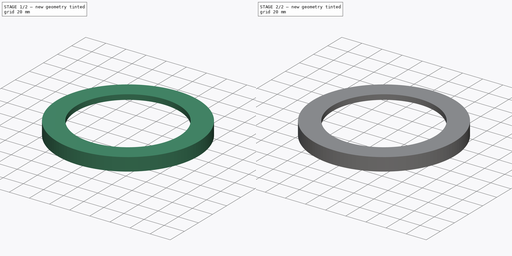
[diagram: build sequence overview — one tinted view per stage of 2, left to right]
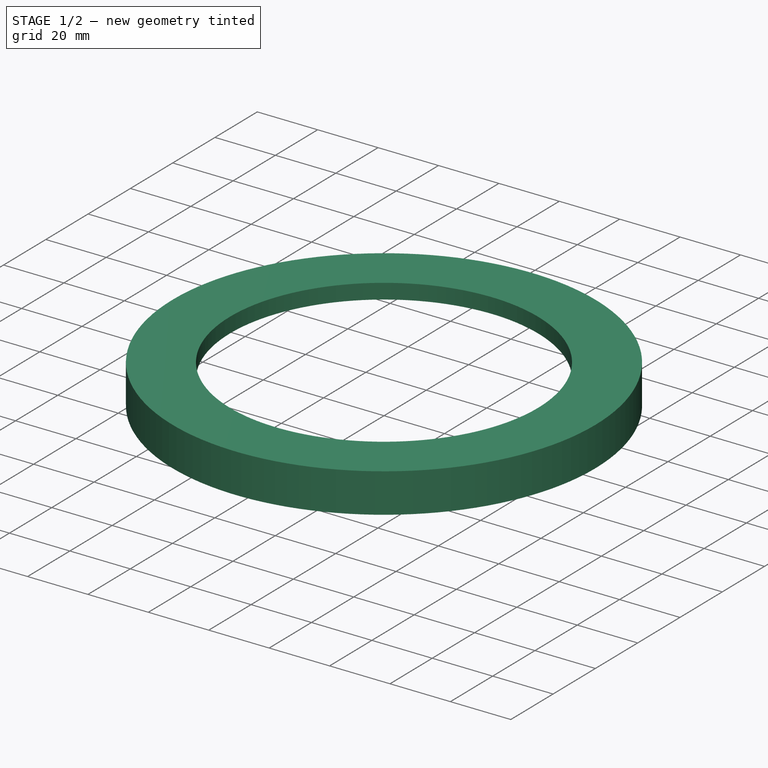
[diagram: stage 1 of 2 — iso view after this stage's code; geometry added in this stage tinted green]
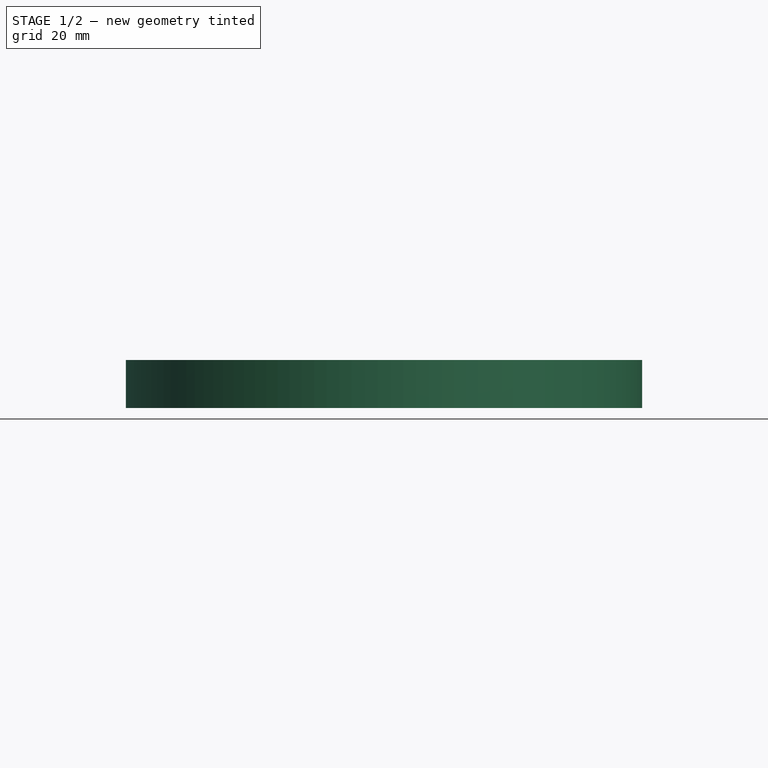
[diagram: stage 1 of 2 — front view after this stage's code; geometry added in this stage tinted green]
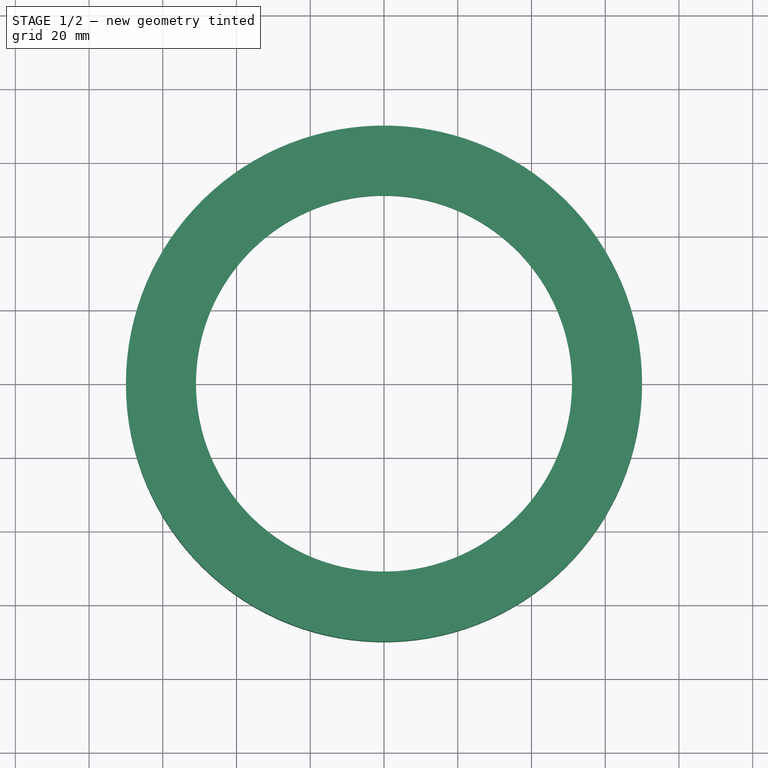
[diagram: stage 1 of 2 — top view after this stage's code; geometry added in this stage tinted green]
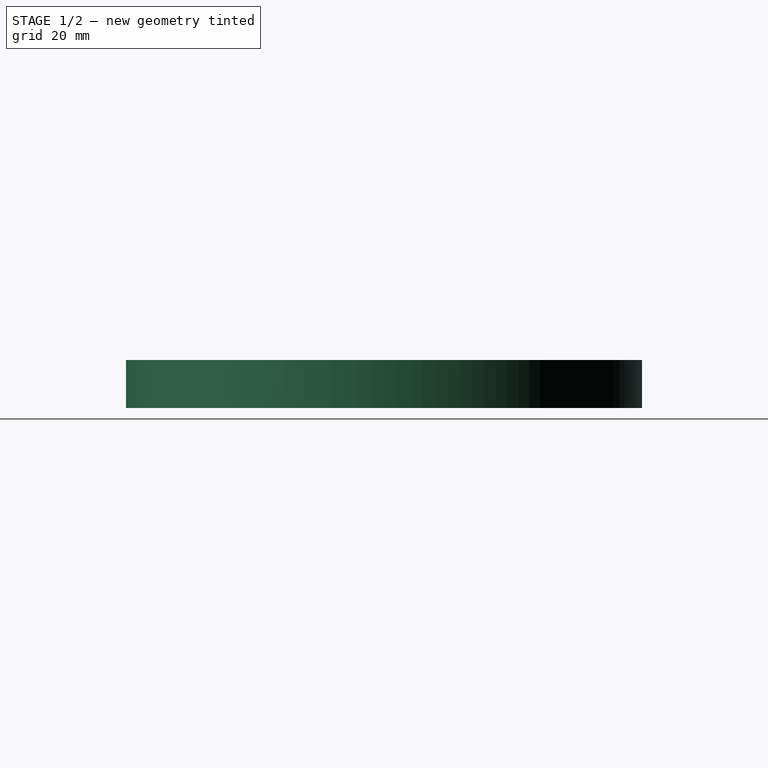
[diagram: stage 1 of 2 — right view after this stage's code; geometry added in this stage tinted green]
FCSTD DOCUMENT  (FreeCAD 2022.111R30764 (Git))
Label: DobsonPlatfromFeedholder
License: All rights reserved
LicenseURL: http://en.wikipedia.org/wiki/All_rights_reserved
objects: Sketcher::SketchExport×3, PartDesign::Pocket×2, PartDesign::Body×1, Sketcher::SketchObject×1, PartDesign::Pad×1, PartDesign::Chamfer×1
note: 17 computed .brp shape members not serialized (recipe doc carries the construction recipe); baked Part::Feature solids carry a one-line shape summary decoded from their .brp

FEATURE [PartDesign::Body] Body
  AutoGroupSolids = false
  ExportMode = 0
  Group = -> [Sketch,Export,Export001,Export002,Pad,Chamfer,Pocket,Pocket001]
  Origin = -> Origin
  Tip = -> Pocket001
  TreeRank = 9
  _ExportChildren = -> [Sketch,Pad,Chamfer,Pocket,Pocket001]
  _GroupVersion = 1
FEATURE [Sketcher::SketchObject] Sketch
  Exports = -> [Export,Export001,Export002]
  FullyConstrained = true
  MapMode = 5
  Support = -> [XY_Plane]
  TreeRank = 10
  sketch-geometry (11):
    g0: Circle CenterX=0 CenterY=0 CenterZ=0 NormalX=0 NormalY=0 NormalZ=1 AngleXU=0 Radius=70
    g1: Circle CenterX=0 CenterY=0 CenterZ=0 NormalX=0 NormalY=0 NormalZ=1 AngleXU=0 Radius=51
    g2: Circle CenterX=0 CenterY=60 CenterZ=0 NormalX=0 NormalY=0 NormalZ=1 AngleXU=0 Radius=1.5
    g3: Circle [constr] CenterX=0 CenterY=0 CenterZ=0 NormalX=0 NormalY=0 NormalZ=1 AngleXU=0 Radius=60
    g4: Circle CenterX=0 CenterY=60 CenterZ=0 NormalX=0 NormalY=0 NormalZ=1 AngleXU=0 Radius=2.7
    g5: Circle CenterX=60 CenterY=0 CenterZ=0 NormalX=0 NormalY=0 NormalZ=1 AngleXU=0 Radius=1.5
    g6: Circle CenterX=0 CenterY=-60 CenterZ=0 NormalX=0 NormalY=0 NormalZ=1 AngleXU=0 Radius=1.5
    g7: Circle CenterX=-60 CenterY=0 CenterZ=0 NormalX=0 NormalY=0 NormalZ=1 AngleXU=0 Radius=1.5
    g8: Circle CenterX=60 CenterY=0 CenterZ=0 NormalX=0 NormalY=0 NormalZ=1 AngleXU=0 Radius=2.7
    g9: Circle CenterX=-60 CenterY=0 CenterZ=0 NormalX=0 NormalY=0 NormalZ=1 AngleXU=0 Radius=2.7
    g10: Circle CenterX=0 CenterY=-60 CenterZ=0 NormalX=0 NormalY=0 NormalZ=1 AngleXU=0 Radius=2.7
  constraints (26):
    c: Coincident(g0,g-1)
    c: Coincident(g1,g0)
    c: Radius(g1) = 51
    c: Radius(g0) = 70
    c: PointOnObject(g2,g-2)
    c: Coincident(g3,g0)
    c: Radius(g3) = 60
    c: PointOnObject(g2,g3)
    c: Diameter(g2) = 3
    c: Coincident(g4,g2)
    c: Diameter(g4) = 5.4
    c: PointOnObject(g5,g3)
    c: PointOnObject(g6,g3)
    c: PointOnObject(g7,g3)
    c: PointOnObject(g7,g-1)
    c: PointOnObject(g6,g-2)
    c: PointOnObject(g5,g-1)
    c: Equal(g2,g5)
    c: Equal(g5,g6)
    c: Equal(g6,g7)
    c: Coincident(g8,g5)
    c: Coincident(g9,g7)
    c: Coincident(g10,g6)
    c: Equal(g4,g8)
    c: Equal(g8,g10)
    c: Equal(g10,g9)
FEATURE [Sketcher::SketchExport] Export
  Base = -> Sketch
  BaseRefs = -> Sketch [edge2,edge1]
  Refs = ;g2.edge2 | ;g1.edge1
  SyncPlacement = true
  TreeRank = 11
FEATURE [Sketcher::SketchExport] Export001
  Base = -> Sketch
  BaseRefs = -> Sketch [edge3,edge8,edge6,edge7]
  Refs = ;g3.edge3 | ;g8.edge8 | ;g6.edge6 | ;g7.edge7
  SyncPlacement = true
  TreeRank = 12
FEATURE [Sketcher::SketchExport] Export002
  Base = -> Sketch
  BaseRefs = -> Sketch [edge11,edge10,edge9,edge5]
  Refs = ;g11.edge11 | ;g10.edge10 | ;g9.edge9 | ;g5.edge5
  SyncPlacement = true
  TreeRank = 13
FEATURE [PartDesign::Pad] Pad
  AddSubType = 0
  AlongSketchNormal = false
  CheckUpToFaceLimits = true
  ClaimChildren = false
  Direction = (0,0,1)
  Fit = 0
  FitJoin = 0
  InnerFit = 0
  InnerFitJoin = 0
  InnerTaperAngle = 0
  InnerTaperAngleRev = 0
  Length = 13
  Length2 = 100
  Linearize = true
  NewSolid = false
  Profile = -> Export
  Refine = true
  Suppress = false
  TreeRank = 14
  Type = 0
  _ProfileBasedVersion = 1
FEATURE [PartDesign::Chamfer] Chamfer
  AddSubType = 0
  Angle = 45
  Base = -> Pad [Edge5]
  BaseFeature = -> Pad
  ChamferType = 1
  FlipDirection = false
  NewSolid = false
  Refine = true
  Size = 8
  Size2 = 18
  SupportTransform = false
  Suppress = false
  TreeRank = 15
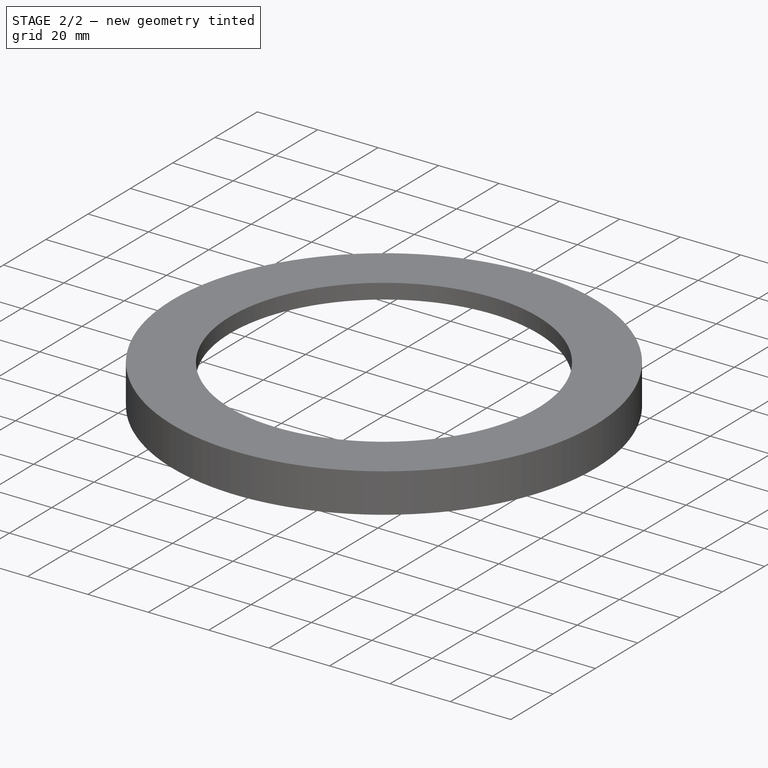
[diagram: stage 2 of 2 — iso view after this stage's code; geometry added in this stage tinted green]
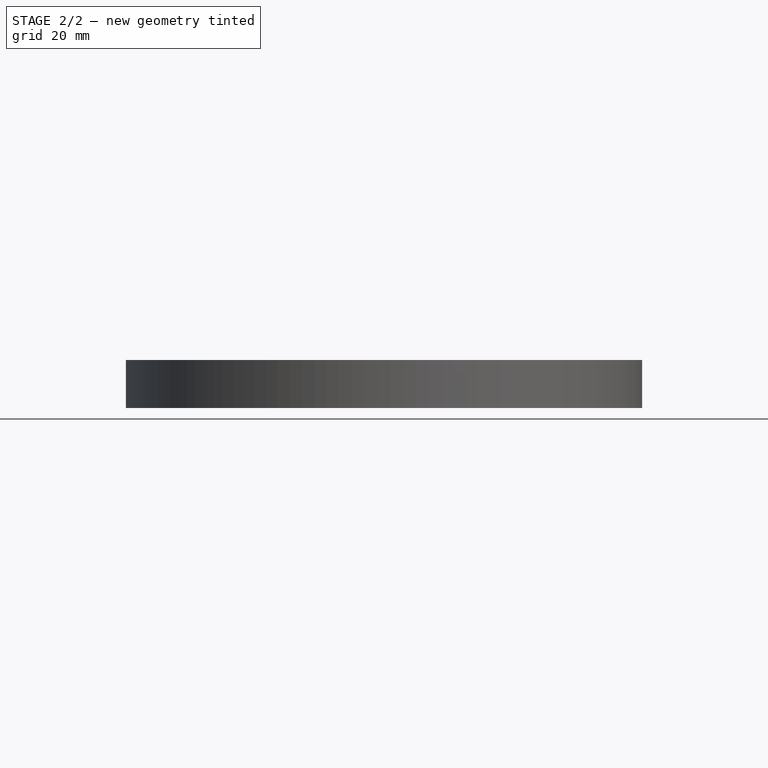
[diagram: stage 2 of 2 — front view after this stage's code; geometry added in this stage tinted green]
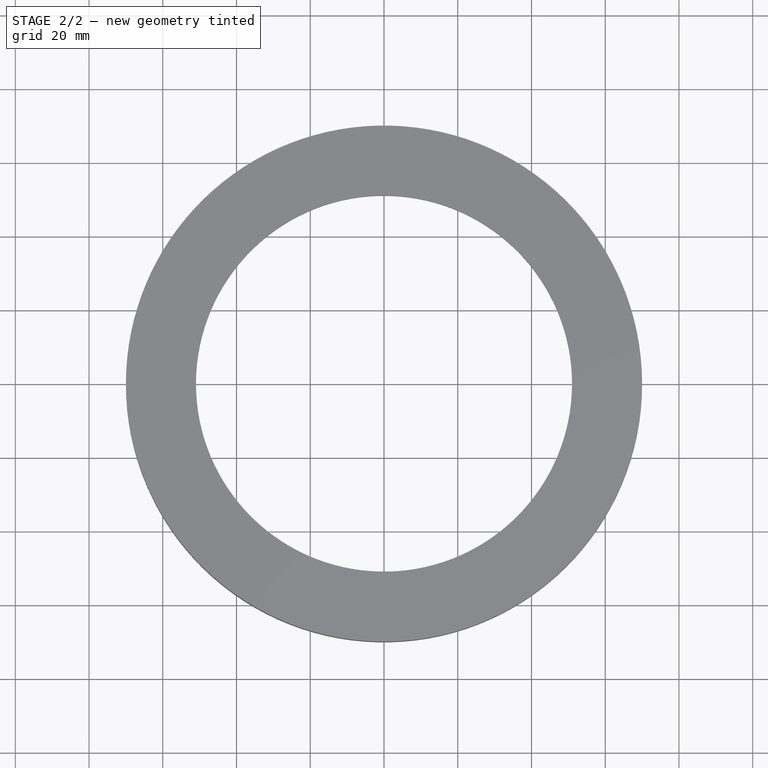
[diagram: stage 2 of 2 — top view after this stage's code; geometry added in this stage tinted green]
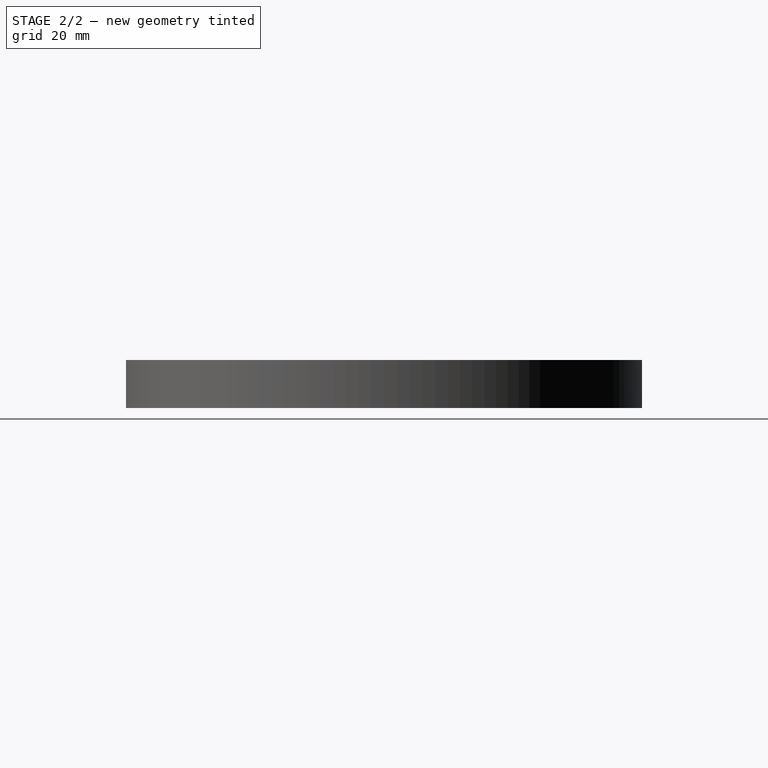
[diagram: stage 2 of 2 — right view after this stage's code; geometry added in this stage tinted green]
FEATURE [PartDesign::Pocket] Pocket
  AddSubType = 1
  BaseFeature = -> Chamfer
  CheckUpToFaceLimits = true
  ClaimChildren = false
  Fit = 0
  FitJoin = 0
  InnerFit = 0
  InnerFitJoin = 0
  InnerTaperAngle = 0
  InnerTaperAngleRev = 0
  Length = 11
  Length2 = 100
  Linearize = true
  NewSolid = false
  Profile = -> Export001
  Refine = true
  Reversed = true
  Suppress = false
  TreeRank = 16
  Type = 0
  _ProfileBasedVersion = 1
  _Version = 1
FEATURE [PartDesign::Pocket] Pocket001
  AddSubType = 1
  BaseFeature = -> Pocket
  CheckUpToFaceLimits = true
  ClaimChildren = false
  Fit = 0
  FitJoin = 0
  InnerFit = 0
  InnerFitJoin = 0
  InnerTaperAngle = 0
  InnerTaperAngleRev = 0
  Length = 6
  Length2 = 100
  Linearize = true
  NewSolid = false
  Profile = -> Export002
  Refine = true
  Reversed = true
  Suppress = false
  TreeRank = 17
  Type = 0
  _ProfileBasedVersion = 1
  _Version = 1
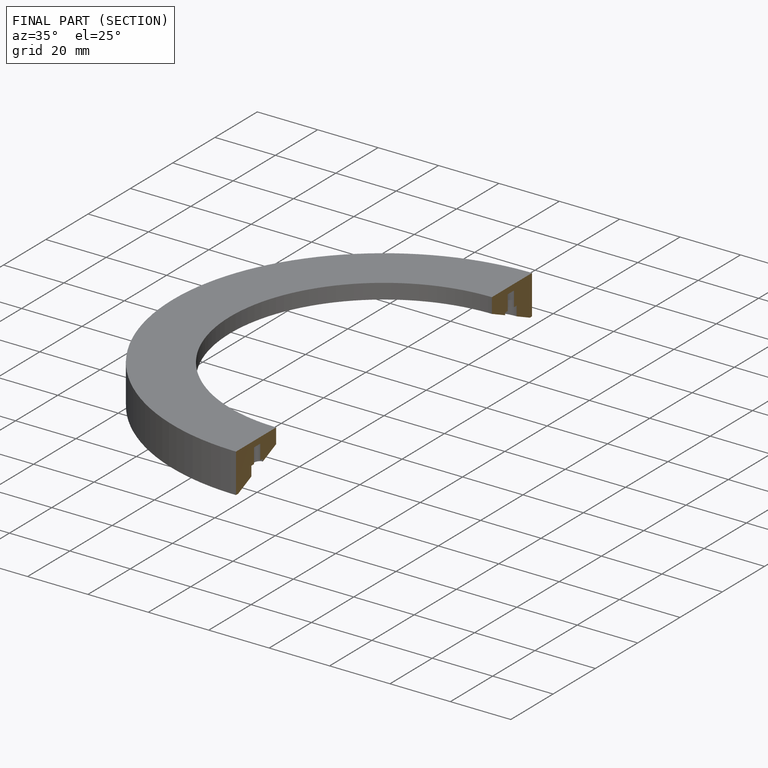
[diagram: finished part — half-section view (interior)]
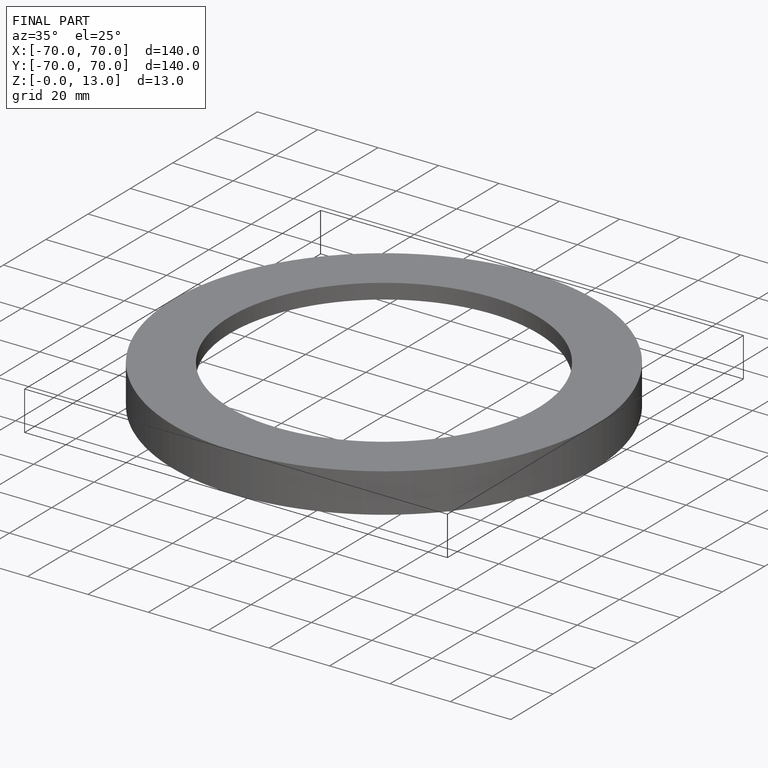
[diagram: finished part — iso view with bounding-box wireframe]
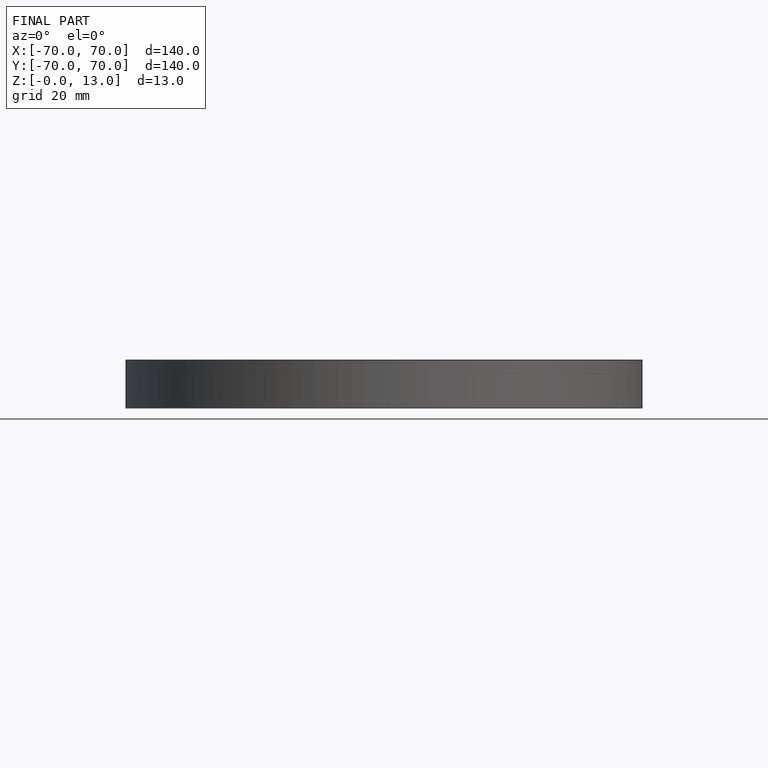
[diagram: finished part — front view with bounding-box wireframe]
